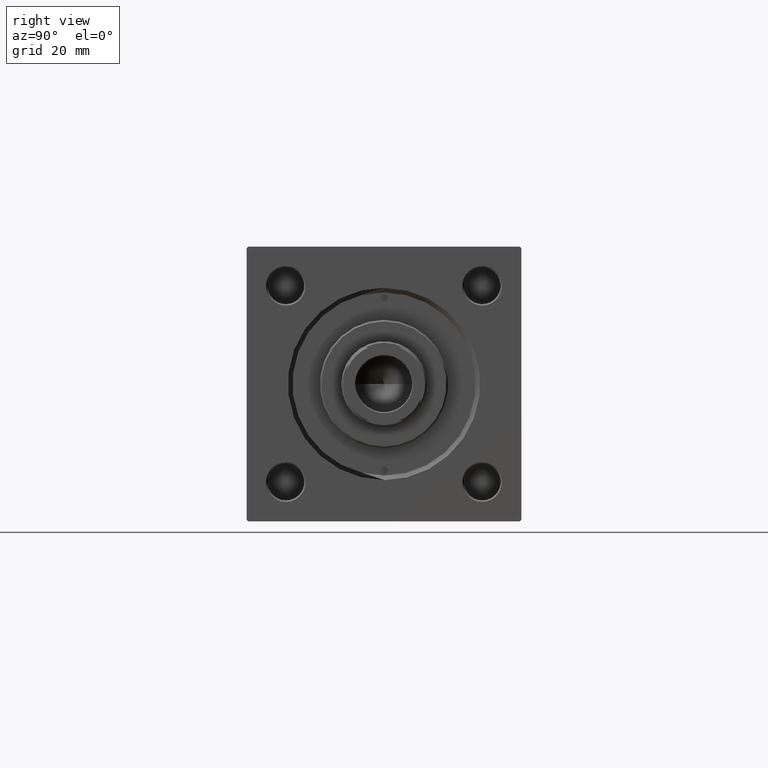
[diagram: clean part render]
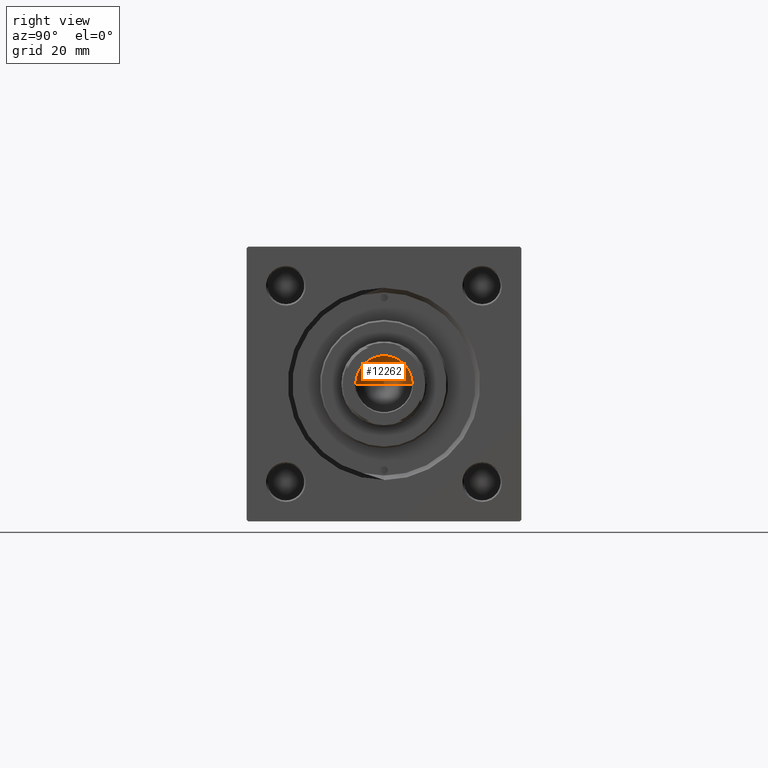
[diagram: same view with one face highlighted and labeled with its STEP entity id]
A machine part, right view. The second image highlights one B-rep face of the part: STEP entity #12262.
In plain terms, the highlighted conical surface has half-angle 59 deg.
Its self-contained STEP definition (entity closure, byte-faithful):
#2142 = DIRECTION ( 'NONE',  ( -0.8571673007021117785, 1.049727191138617956E-16, 0.5150380749100550437 ) ) ;
#3661 = DIRECTION ( 'NONE',  ( -0.000000000000000000, -0.000000000000000000, 1.000000000000000000 ) ) ;
#5895 = DIRECTION ( 'NONE',  ( 0.8571673007021117785, 0.000000000000000000, 0.5150380749100550437 ) ) ;
#6184 = AXIS2_PLACEMENT_3D ( 'NONE', #30922, #3661, #19215 ) ;
#10233 = LINE ( 'NONE', #28849, #19542 ) ;
#12121 = VERTEX_POINT ( 'NONE', #32972 ) ;
#12262 = ADVANCED_FACE ( 'NONE', ( #23018 ), #29803, .F. ) ;
#12426 = EDGE_LOOP ( 'NONE', ( #21542, #22056, #45360 ) ) ;
#16256 = AXIS2_PLACEMENT_3D ( 'NONE', #37031, #33711, #41113 ) ;
#19215 = DIRECTION ( 'NONE',  ( 1.000000000000000000, 0.000000000000000000, 0.000000000000000000 ) ) ;
#19542 = VECTOR ( 'NONE', #5895, 1000.000000000000000 ) ;
#21007 = EDGE_CURVE ( 'NONE', #46759, #21537, #43892, .T. ) ;
#21537 = VERTEX_POINT ( 'NONE', #31090 ) ;
#21542 = ORIENTED_EDGE ( 'NONE', *, *, #22822, .F. ) ;
#22056 = ORIENTED_EDGE ( 'NONE', *, *, #48275, .T. ) ;
#22765 = CARTESIAN_POINT ( 'NONE',  ( -9.249999999999992895, 1.132798289211300712E-15, 114.9999999999999858 ) ) ;
#22822 = EDGE_CURVE ( 'NONE', #12121, #21537, #10233, .T. ) ;
#23018 = FACE_OUTER_BOUND ( 'NONE', #12426, .T. ) ;
#26289 = VECTOR ( 'NONE', #2142, 1000.000000000000000 ) ;
#28849 = CARTESIAN_POINT ( 'NONE',  ( 9.249999999999992895, 0.000000000000000000, 114.9999999999999858 ) ) ;
#29803 = CONICAL_SURFACE ( 'NONE', #6184, 9.249999999999992895, 1.029744258676653423 ) ;
#30922 = CARTESIAN_POINT ( 'NONE',  ( 0.000000000000000000, 0.000000000000000000, 114.9999999999999858 ) ) ;
#31090 = CARTESIAN_POINT ( 'NONE',  ( 9.249999999999992895, 0.000000000000000000, 114.9999999999999858 ) ) ;
#32972 = CARTESIAN_POINT ( 'NONE',  ( -9.769621978240258809E-15, 0.000000000000000000, 109.4420392739950501 ) ) ;
#33711 = DIRECTION ( 'NONE',  ( -0.000000000000000000, -0.000000000000000000, 1.000000000000000000 ) ) ;
#34230 = LINE ( 'NONE', #22765, #26289 ) ;
#37031 = CARTESIAN_POINT ( 'NONE',  ( 0.000000000000000000, 0.000000000000000000, 114.9999999999999858 ) ) ;
#41113 = DIRECTION ( 'NONE',  ( 1.000000000000000000, 0.000000000000000000, 0.000000000000000000 ) ) ;
#43892 = CIRCLE ( 'NONE', #16256, 9.249999999999992895 ) ;
#45360 = ORIENTED_EDGE ( 'NONE', *, *, #21007, .T. ) ;
#46759 = VERTEX_POINT ( 'NONE', #48642 ) ;
#48275 = EDGE_CURVE ( 'NONE', #12121, #46759, #34230, .T. ) ;
#48642 = CARTESIAN_POINT ( 'NONE',  ( -9.249999999999992895, 1.132798289211300712E-15, 114.9999999999999858 ) ) ;